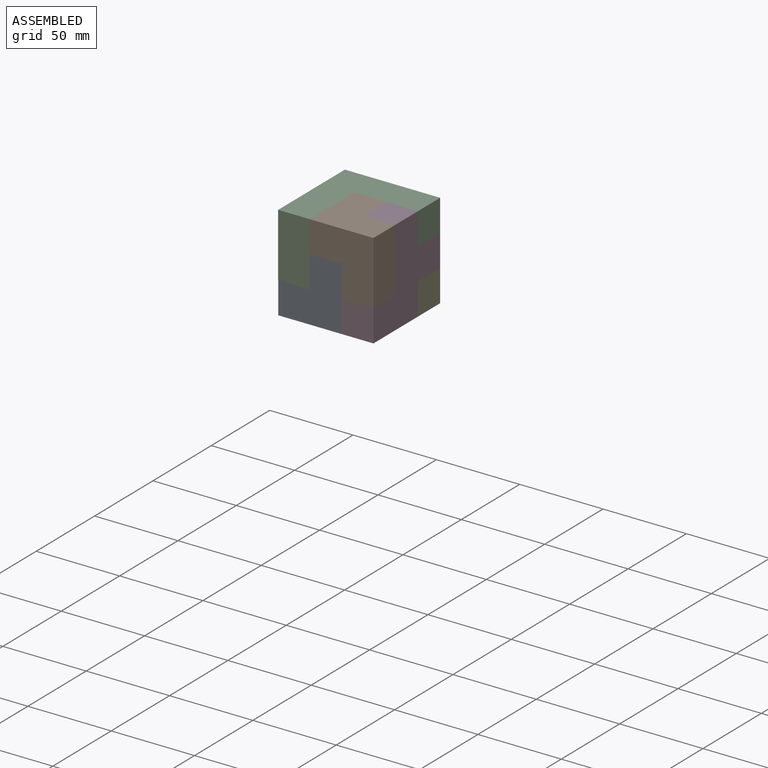
[diagram: assembled view]
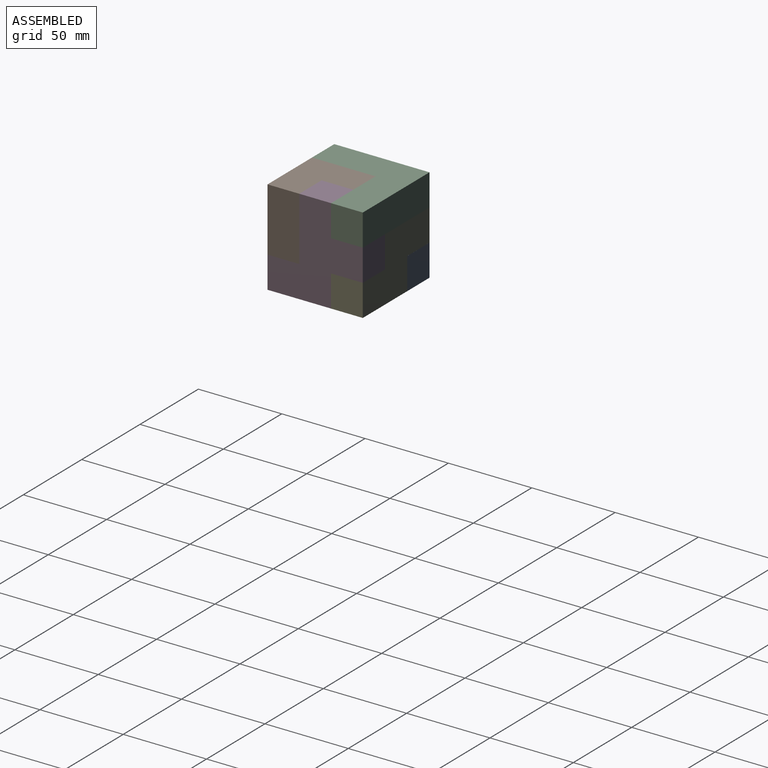
[diagram: assembled view, second angle]
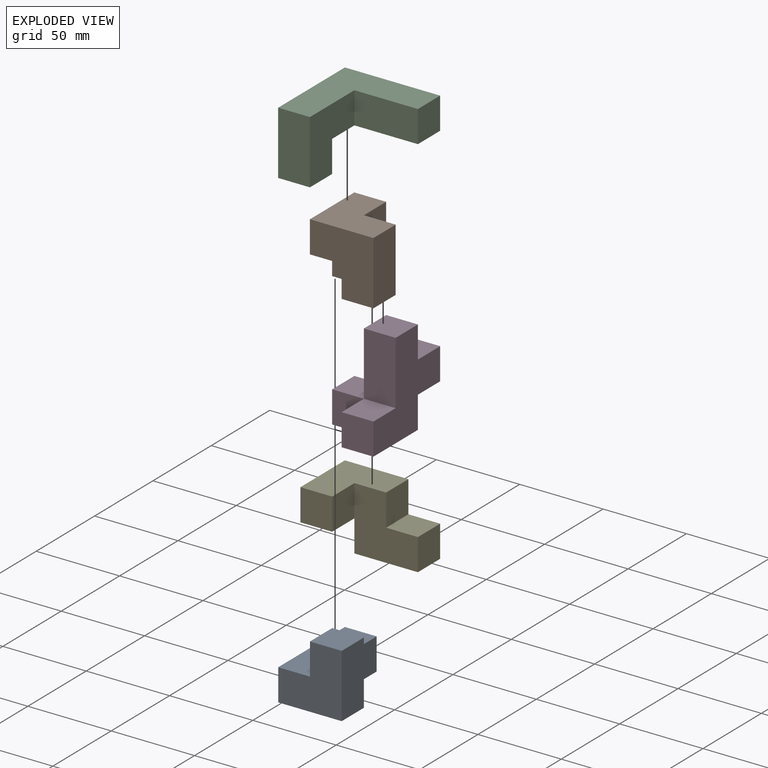
[diagram: exploded view]
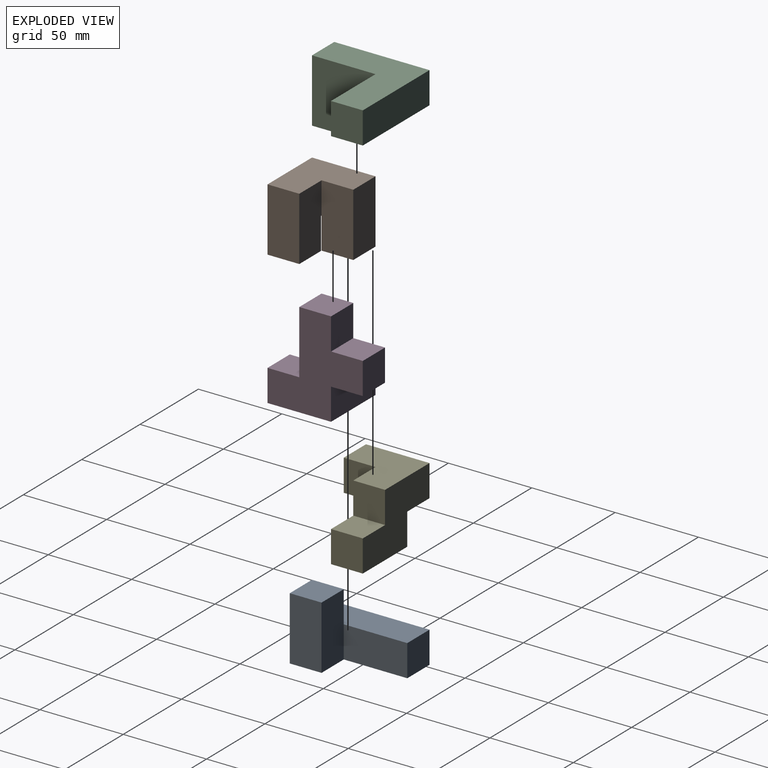
[diagram: exploded view, second angle]
ASSEMBLY  parts=5 mates=4
PART A: 10 faces, bbox 38.1x57.2x38.1 mm
  f0: plane 57.15x19.05mm, normal (-1,0,0), area 1088.7mm2, adj f1,f3,f4,f5,f8
  f1: plane 38.1x19.05mm, normal (0,0,-1), area 725.8mm2, adj f0,f2,f4,f6
  f2: plane 57.15x38.1mm, normal (1,0,0), area 1451.6mm2, adj f1,f3,f4,f5,f6,f7
  f3: plane 57.15x19.05mm, normal (0,0,1), area 1088.7mm2, adj f0,f2,f4,f5
  f4: plane 19.05x19.05mm, normal (0,-1,0), area 362.9mm2, adj f0,f1,f2,f3
  f5: plane 38.1x38.1mm, normal (0,1,0), area 1088.7mm2, adj f0,f2,f3,f7,f8,f9
  f6: plane 38.1x19.05mm, normal (0,-1,0), area 725.8mm2, adj f1,f2,f7,f8,f9
  f7: plane 38.1x19.05mm, normal (0,0,-1), area 725.8mm2, adj f2,f5,f6,f9
  f8: plane 19.05x19.05mm, normal (0,0,1), area 362.9mm2, adj f0,f5,f6,f9
  f9: plane 19.05x19.05mm, normal (-1,0,0), area 362.9mm2, adj f5,f6,f7,f8
PART B: 14 faces, bbox 38.1x38.1x38.1 mm
  f0: plane 19.05x18.55mm, normal (-1,0,0), area 353.4mm2, adj f2,f4,f6,f10
  f1: plane 38.1x19.05mm, normal (0,0,-1), area 716.3mm2, adj f2,f3,f5,f6,f8,f11
  f2: plane 19.05x19.05mm, normal (0,-1,0), area 362.7mm2, adj f0,f1,f3,f4,f10,f11
  f3: plane 38.1x19.05mm, normal (1,0,0), area 725.8mm2, adj f1,f2,f4,f5
  f4: plane 38.1x38.1mm, normal (0,0,1), area 1088.7mm2, adj f0,f2,f3,f5,f6,f7
  f5: plane 38.1x38.1mm, normal (0,1,0), area 1088.7mm2, adj f1,f3,f4,f7,f8,f9
  f6: plane 19.55x19.05mm, normal (0,-1,0), area 363.2mm2, adj f0,f1,f4,f7,f10,f11,f12
  f7: plane 38.1x38.1mm, normal (-1,0,0), area 1088.7mm2, adj f4,f5,f6,f9,f12,f13
  f8: plane 38.1x19.05mm, normal (1,0,0), area 725.8mm2, adj f1,f5,f9,f12,f13
  f9: plane 38.1x19.05mm, normal (0,0,-1), area 725.8mm2, adj f5,f7,f8,f13
  f10: plane 19.05x0.5mm, normal (0,0,-1), area 9.5mm2, adj f0,f2,f6,f11
  f11: plane 19.05x0.5mm, normal (-1,0,0), area 9.5mm2, adj f1,f2,f6,f10
  f12: plane 19.05x19.05mm, normal (0,0,1), area 362.9mm2, adj f6,f7,f8,f13
  f13: plane 19.05x19.05mm, normal (0,-1,0), area 362.9mm2, adj f7,f8,f9,f12
PART C: 10 faces, bbox 57.2x57.2x38.1 mm
  f0: plane 57.15x38.1mm, normal (0,0,1), area 1451.6mm2, adj f1,f4,f5,f6,f7,f8
  f1: plane 57.15x19.05mm, normal (-1,0,0), area 1088.7mm2, adj f0,f2,f5,f7
  f2: plane 57.15x57.15mm, normal (0,0,-1), area 1814.5mm2, adj f1,f3,f4,f5,f6,f7
  f3: plane 38.1x19.05mm, normal (1,0,0), area 725.8mm2, adj f2,f4,f5,f9
  f4: plane 38.1x38.1mm, normal (0,-1,0), area 1088.7mm2, adj f0,f2,f3,f6,f8,f9
  f5: plane 57.15x38.1mm, normal (0,1,0), area 1451.6mm2, adj f0,f1,f2,f3,f8,f9
  f6: plane 38.1x19.05mm, normal (1,0,0), area 725.8mm2, adj f0,f2,f4,f7
  f7: plane 19.05x19.05mm, normal (0,-1,0), area 362.9mm2, adj f0,f1,f2,f6
  f8: plane 19.05x19.05mm, normal (-1,0,0), area 362.9mm2, adj f0,f4,f5,f9
  f9: plane 19.05x19.05mm, normal (0,0,1), area 362.9mm2, adj f3,f4,f5,f8
PART D: 16 faces, bbox 38.1x57.2x57.2 mm
  f0: plane 38.1x38.1mm, normal (-1,0,0), area 1088.7mm2, adj f7,f8,f9,f10,f11,f12,f13
  f1: plane 38.1x19.05mm, normal (0,1,0), area 725.8mm2, adj f2,f3,f10,f13,f15
  f2: plane 38.1x38.1mm, normal (0,0,-1), area 1088.7mm2, adj f1,f3,f5,f6,f14,f15
  f3: plane 57.15x57.15mm, normal (1,0,0), area 1814.5mm2, adj f1,f2,f4,f6,f7,f8,f9,f10
  f4: plane 19.05x19.05mm, normal (0,0,1), area 362.9mm2, adj f3,f5,f6,f8
  f5: plane 19.05x19.05mm, normal (-1,0,0), area 362.9mm2, adj f2,f4,f6,f14
  f6: plane 19.05x19.05mm, normal (0,-1,0), area 362.9mm2, adj f2,f3,f4,f5
  f7: plane 19.05x19.05mm, normal (0,1,0), area 362.9mm2, adj f0,f3,f9,f11
  f8: plane 38.1x19.05mm, normal (0,-1,0), area 725.8mm2, adj f0,f3,f4,f9
  f9: plane 19.05x19.05mm, normal (0,0,1), area 362.9mm2, adj f0,f3,f7,f8
  f10: plane 19.05x19.05mm, normal (0,0,-1), area 362.9mm2, adj f0,f1,f3,f12
  f11: plane 19.05x19.05mm, normal (0,0,1), area 362.9mm2, adj f0,f3,f7,f12
  f12: plane 19.05x19.05mm, normal (0,1,0), area 362.9mm2, adj f0,f3,f10,f11
  f13: plane 19.05x19.05mm, normal (0,0,1), area 362.9mm2, adj f0,f1,f14,f15
  f14: plane 19.05x19.05mm, normal (0,-1,0), area 362.9mm2, adj f2,f5,f13,f15
  f15: plane 19.05x19.05mm, normal (-1,0,0), area 362.9mm2, adj f1,f2,f13,f14
PART E: 12 faces, bbox 38.1x57.2x38.1 mm
  f0: plane 57.15x38.1mm, normal (-1,0,0), area 1451.6mm2, adj f1,f3,f4,f5,f6,f7,f8,f9
  f1: plane 19.05x19.05mm, normal (0,0,-1), area 362.9mm2, adj f0,f2,f4,f6
  f2: plane 38.1x38.1mm, normal (1,0,0), area 1088.7mm2, adj f1,f3,f4,f5,f6,f7,f10
  f3: plane 38.1x19.05mm, normal (0,0,1), area 725.8mm2, adj f0,f2,f4,f5
  f4: plane 19.05x19.05mm, normal (0,-1,0), area 362.9mm2, adj f0,f1,f2,f3
  f5: plane 19.05x19.05mm, normal (0,1,0), area 362.9mm2, adj f0,f2,f3,f8
  f6: plane 19.05x19.05mm, normal (0,-1,0), area 362.9mm2, adj f0,f1,f2,f7
  f7: plane 38.1x38.1mm, normal (0,0,-1), area 1088.7mm2, adj f0,f2,f6,f9,f10,f11
  f8: plane 38.1x19.05mm, normal (0,0,1), area 725.8mm2, adj f0,f5,f9,f10,f11
  f9: plane 38.1x19.05mm, normal (0,1,0), area 725.8mm2, adj f0,f7,f8,f11
  f10: plane 19.05x19.05mm, normal (0,-1,0), area 362.9mm2, adj f2,f7,f8,f11
  f11: plane 19.05x19.05mm, normal (1,0,0), area 362.9mm2, adj f7,f8,f9,f10
PLACE A rot(axis=(0.71,0,-0.71),180deg) t=(-30.89,-28.37,3.09)mm
PLACE B rot(axis=(1,0,0),90deg) t=(-11.85,-9.33,41.19)mm
PLACE C rot(axis=(-0.71,0.71,0),180deg) t=(-49.95,28.77,41.19)mm
PLACE D t=(7.2,9.72,-15.96)mm fixed
PLACE E rot(axis=(-0.71,0.71,0),180deg) t=(-30.9,28.77,3.09)mm
MATE fastened C.f0 <-> E.f7  axis (0,0,-1) through (-30.9,9.72,22.14)mm
MATE fastened B.f13 <-> D.f13  axis (0,0,-1) through (-21.37,0.2,3.09)mm
MATE fastened E.f2 <-> B.f9  axis (0,-1,0) through (-11.85,9.72,3.09)mm
MATE fastened A.f9 <-> B.f6  axis (0,0,1) through (-21.36,-18.85,22.14)mm
